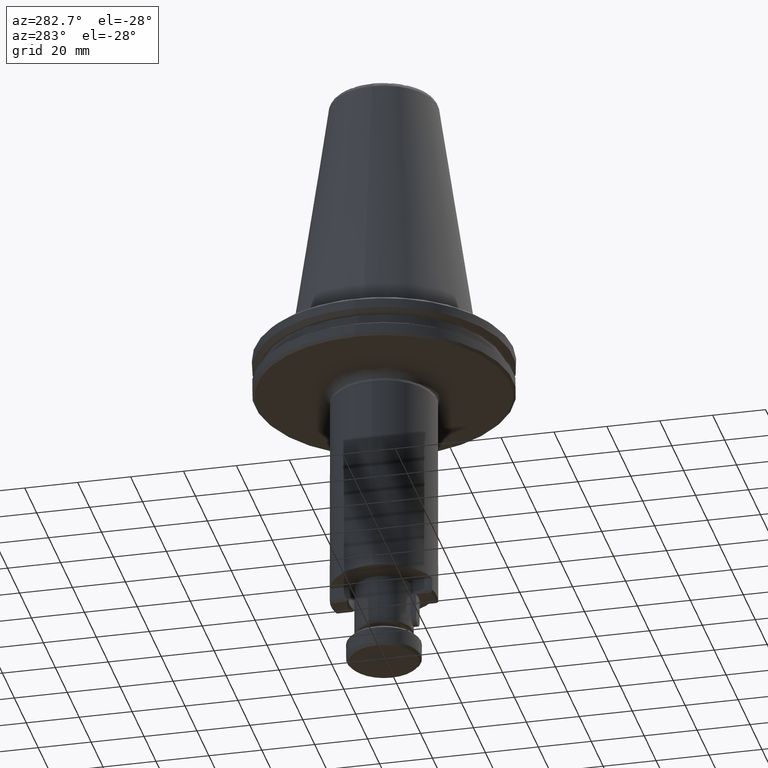
[diagram: clean part render]
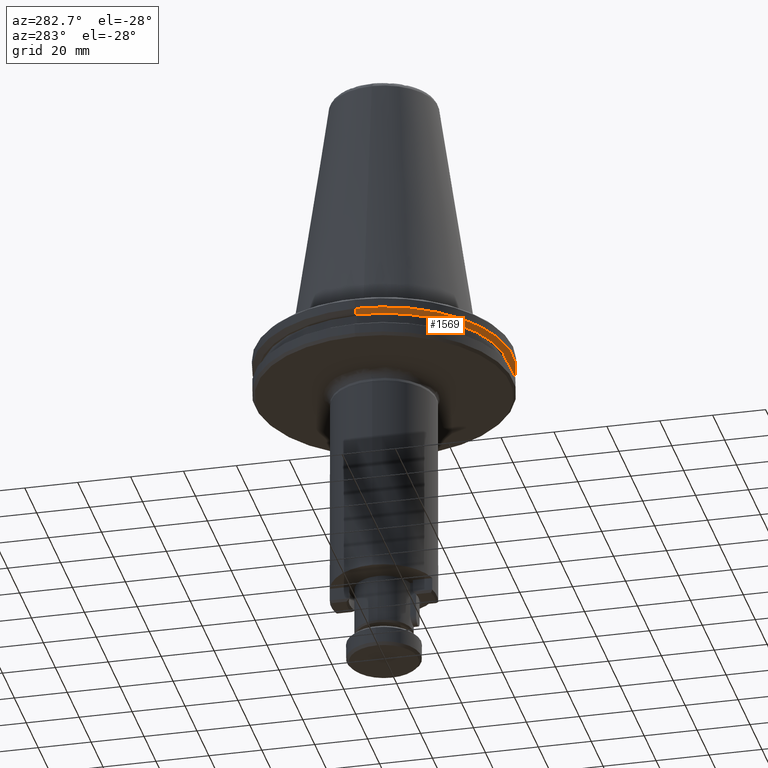
[diagram: same view with one face highlighted and labeled with its STEP entity id]
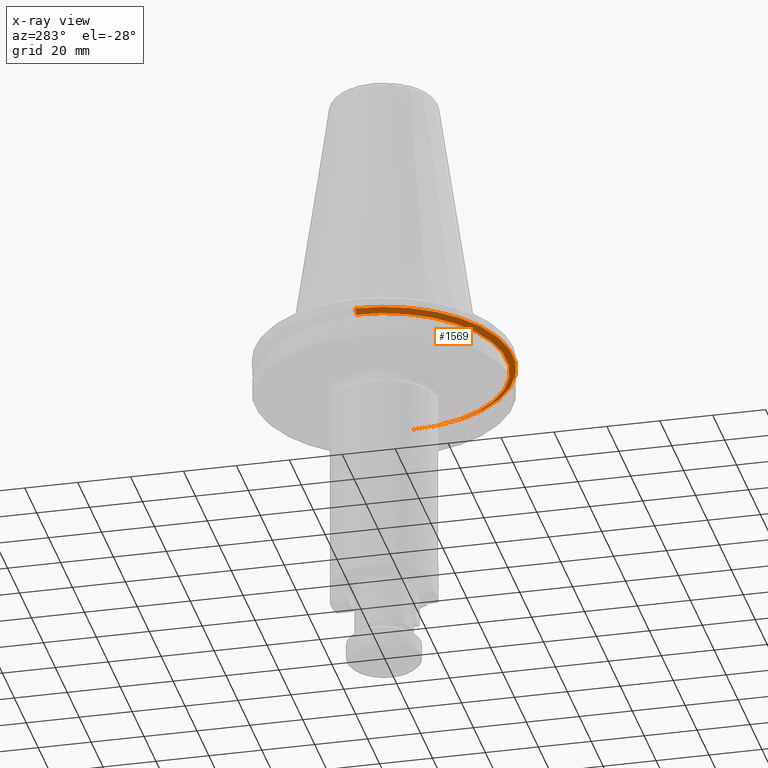
[diagram: x-ray of the same camera — body ghosted, the highlighted face saturated]
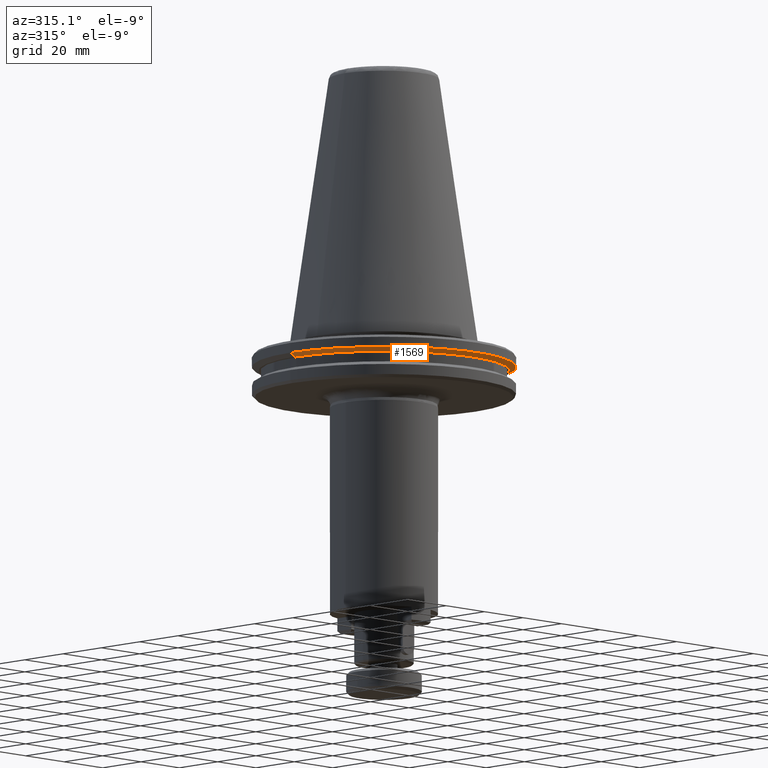
[diagram: same view with one face highlighted and labeled with its STEP entity id]
A machine part, auxiliary view. The second image highlights one B-rep face of the part: STEP entity #1569.
The next image is the same camera in x-ray: the body ghosted, the highlighted face saturated — about 0% of this face is hidden behind the body in this view.
A second angle (auxiliary view) of the same face is appended — the face is thin or edge-on in the first view.
In plain terms, the highlighted conical surface has half-angle 60 deg.
Its self-contained STEP definition (entity closure, byte-faithful):
#25 = VERTEX_POINT ( 'NONE', #2597 ) ;
#47 = VERTEX_POINT ( 'NONE', #1472 ) ;
#183 = VERTEX_POINT ( 'NONE', #434 ) ;
#280 = LINE ( 'NONE', #349, #386 ) ;
#300 = DIRECTION ( 'NONE',  ( -0.0000000000000000000, -0.0000000000000000000, -1.000000000000000000 ) ) ;
#349 = CARTESIAN_POINT ( 'NONE',  ( 40.69000914261425100, 102.4230254990840100, 90.79902261484829800 ) ) ;
#366 = DIRECTION ( 'NONE',  ( 0.0000000000000000000, 0.0000000000000000000, 1.000000000000000000 ) ) ;
#381 = CARTESIAN_POINT ( 'NONE',  ( 135.8126044065585100, 102.4230254990840100, 89.42642735088047300 ) ) ;
#386 = VECTOR ( 'NONE', #1081, 1000.000000000000000 ) ;
#434 = CARTESIAN_POINT ( 'NONE',  ( 43.06741387855849000, 102.4230254990840100, 89.42642735088047300 ) ) ;
#687 = DIRECTION ( 'NONE',  ( 0.0000000000000000000, 0.0000000000000000000, 1.000000000000000000 ) ) ;
#710 = VECTOR ( 'NONE', #879, 1000.000000000000000 ) ;
#865 = DIRECTION ( 'NONE',  ( 1.000000000000000000, 0.0000000000000000000, 0.0000000000000000000 ) ) ;
#879 = DIRECTION ( 'NONE',  ( 0.8660254038321199000, 0.0000000000000000000, 0.4999999999174136700 ) ) ;
#954 = EDGE_CURVE ( 'NONE', #1073, #25, #2687, .T. ) ;
#1073 = VERTEX_POINT ( 'NONE', #381 ) ;
#1081 = DIRECTION ( 'NONE',  ( -0.8660254038321199000, 1.060575238783299600E-016, 0.4999999999174136700 ) ) ;
#1133 = ORIENTED_EDGE ( 'NONE', *, *, #954, .T. ) ;
#1275 = EDGE_CURVE ( 'NONE', #25, #47, #2921, .T. ) ;
#1467 = CONICAL_SURFACE ( 'NONE', #2290, 48.74999999994424400, 1.047197551291960200 ) ;
#1472 = CARTESIAN_POINT ( 'NONE',  ( 40.69000914261425100, 102.4230254990840100, 90.79902261484829800 ) ) ;
#1569 = ADVANCED_FACE ( 'NONE', ( #2366 ), #1467, .T. ) ;
#1776 = CARTESIAN_POINT ( 'NONE',  ( 89.44000914255849500, 102.4230254990840100, 90.79902261484829800 ) ) ;
#1870 = AXIS2_PLACEMENT_3D ( 'NONE', #2147, #687, #2393 ) ;
#1882 = EDGE_CURVE ( 'NONE', #183, #1073, #2877, .T. ) ;
#2013 = DIRECTION ( 'NONE',  ( 1.000000000000000000, 0.0000000000000000000, 0.0000000000000000000 ) ) ;
#2133 = EDGE_LOOP ( 'NONE', ( #2600, #2826, #1133, #2430 ) ) ;
#2147 = CARTESIAN_POINT ( 'NONE',  ( 89.44000914255849500, 102.4230254990840100, 89.42642735088047300 ) ) ;
#2290 = AXIS2_PLACEMENT_3D ( 'NONE', #3039, #366, #865 ) ;
#2320 = CARTESIAN_POINT ( 'NONE',  ( 138.1900091425027300, 102.4230254990840100, 90.79902261484829800 ) ) ;
#2366 = FACE_OUTER_BOUND ( 'NONE', #2133, .T. ) ;
#2393 = DIRECTION ( 'NONE',  ( 1.000000000000000000, 0.0000000000000000000, 0.0000000000000000000 ) ) ;
#2430 = ORIENTED_EDGE ( 'NONE', *, *, #1275, .T. ) ;
#2597 = CARTESIAN_POINT ( 'NONE',  ( 138.1900091425027300, 102.4230254990840100, 90.79902261484829800 ) ) ;
#2600 = ORIENTED_EDGE ( 'NONE', *, *, #2860, .F. ) ;
#2687 = LINE ( 'NONE', #2320, #710 ) ;
#2826 = ORIENTED_EDGE ( 'NONE', *, *, #1882, .T. ) ;
#2860 = EDGE_CURVE ( 'NONE', #183, #47, #280, .T. ) ;
#2877 = CIRCLE ( 'NONE', #1870, 46.37259526400001900 ) ;
#2921 = CIRCLE ( 'NONE', #3012, 48.74999999994424400 ) ;
#3012 = AXIS2_PLACEMENT_3D ( 'NONE', #1776, #300, #2013 ) ;
#3039 = CARTESIAN_POINT ( 'NONE',  ( 89.44000914255849500, 102.4230254990840100, 90.79902261484829800 ) ) ;